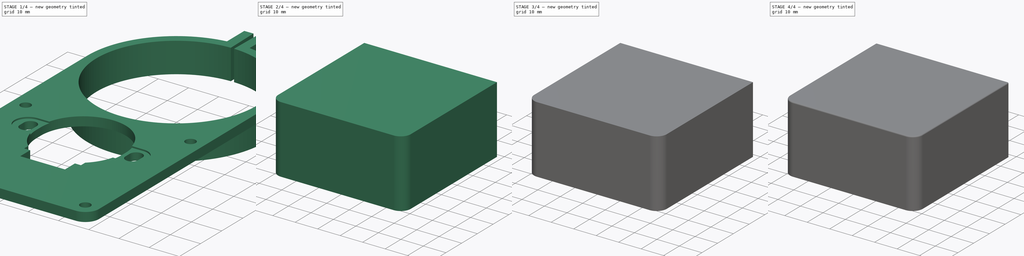
[diagram: build sequence overview — one tinted view per stage of 4, left to right]
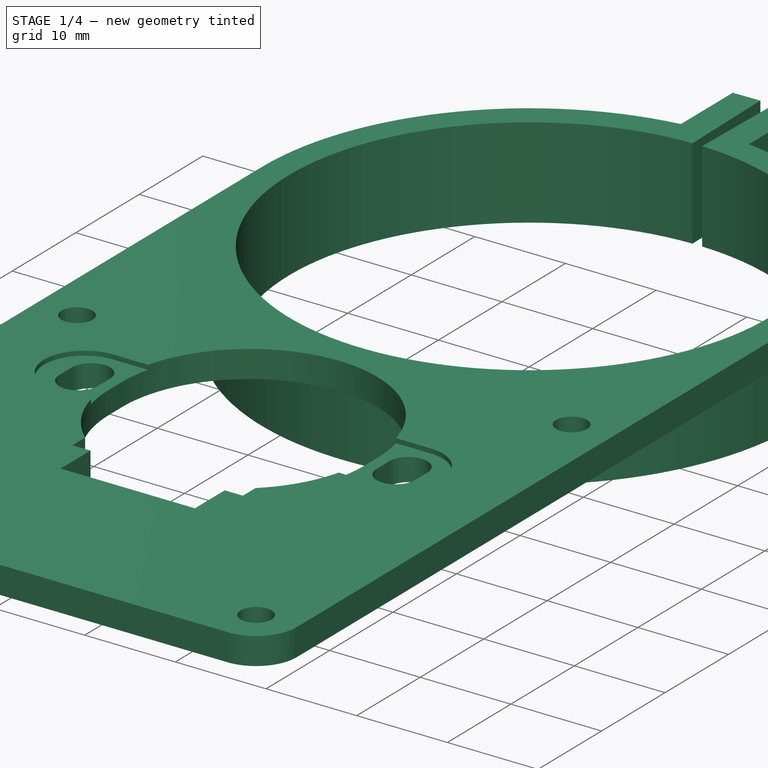
[diagram: stage 1 of 4 — iso view after this stage's code; geometry added in this stage tinted green]
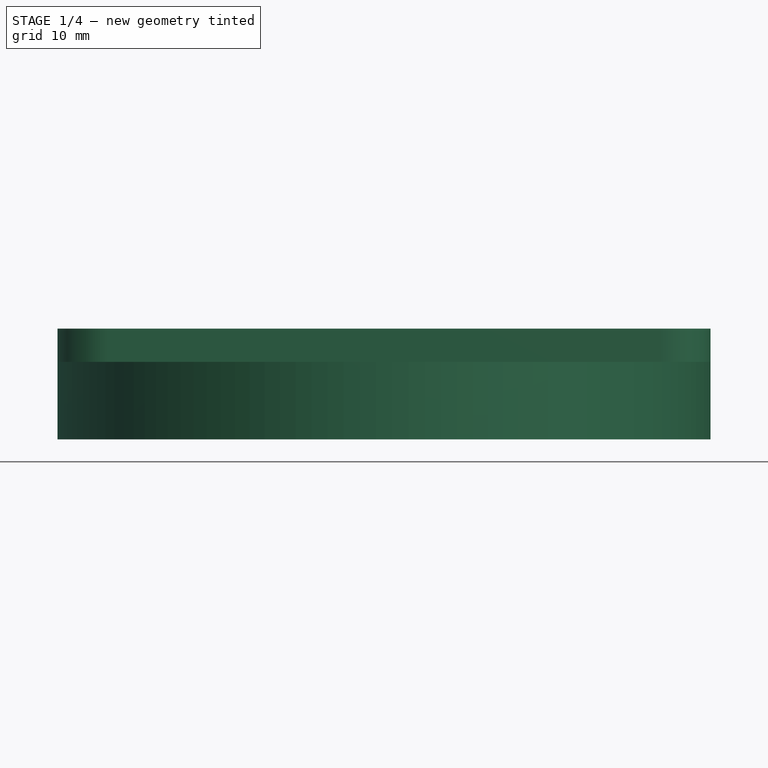
[diagram: stage 1 of 4 — front view after this stage's code; geometry added in this stage tinted green]
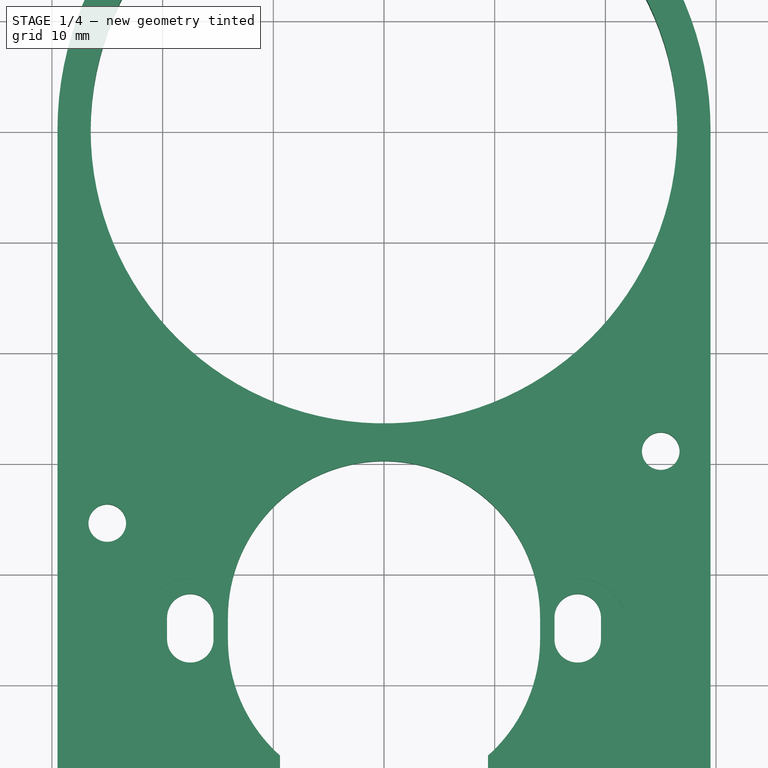
[diagram: stage 1 of 4 — top view after this stage's code; geometry added in this stage tinted green]
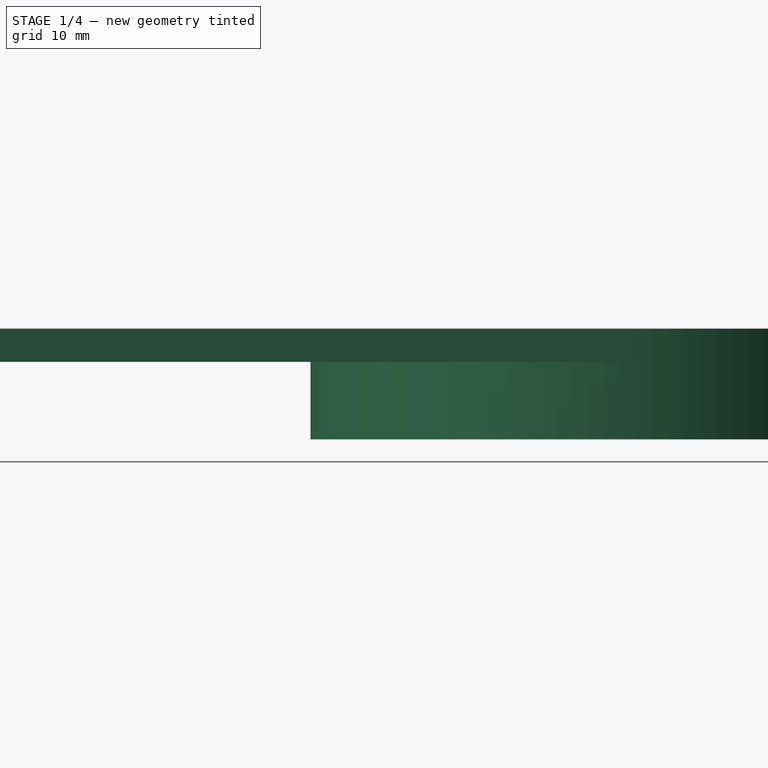
[diagram: stage 1 of 4 — right view after this stage's code; geometry added in this stage tinted green]
FCSTD DOCUMENT  (FreeCAD 0.21R33771 (Git))
Label: Body
License: All rights reserved
LicenseURL: https://en.wikipedia.org/wiki/All_rights_reserved
objects: Sketcher::SketchObject×12, PartDesign::Pocket×8, PartDesign::Pad×4, PartDesign::SubShapeBinder×2, PartDesign::Body×2, Spreadsheet::Sheet×1, PartDesign::Fillet×1, App::Part×1
note: 42 computed .brp shape members not serialized (recipe doc carries the construction recipe); baked Part::Feature solids carry a one-line shape summary decoded from their .brp

FEATURE [Sketcher::SketchObject] Sketch
  FullyConstrained = true
  MapMode = 5
  Support = -> [XY_Plane001]
  sketch-geometry (38):
    g0: LineSegment StartX=-25 StartY=-83.2 StartZ=0 EndX=25 EndY=-83.2 EndZ=0
    g1: LineSegment StartX=29.5 StartY=-78.7 StartZ=0 EndX=29.5 EndY=0 EndZ=0
    g2: ArcOfCircle CenterX=2.51e-14 CenterY=0 CenterZ=0 NormalX=0 NormalY=0 NormalZ=1 AngleXU=0 Radius=29.5 StartAngle=0 EndAngle=1.44335
    g3: LineSegment StartX=3.7494 StartY=29.2608 StartZ=0 EndX=3.7494 EndY=37.4325 EndZ=0
    g4: LineSegment StartX=3.7494 StartY=37.4325 StartZ=0 EndX=0.75 EndY=37.4925 EndZ=0
    g5: LineSegment StartX=0.75 StartY=37.4925 StartZ=0 EndX=0.53 EndY=26.4947 EndZ=0
    g6: ArcOfCircle CenterX=2.51e-14 CenterY=0 CenterZ=0 NormalX=0 NormalY=0 NormalZ=1 AngleXU=0 Radius=26.5 StartAngle=1.5908 EndAngle=7.83398
    g7: ArcOfCircle CenterX=2.51e-14 CenterY=0 CenterZ=0 NormalX=0 NormalY=0 NormalZ=1 AngleXU=0 Radius=29.5 StartAngle=1.69824 EndAngle=3.14159
    g8: LineSegment StartX=-29.5 StartY=0 StartZ=0 EndX=-29.5 EndY=-78.7 EndZ=0
    g9: LineSegment StartX=-0.53 StartY=26.4947 StartZ=0 EndX=-0.75 EndY=37.4925 EndZ=0
    g10: LineSegment StartX=-0.75 StartY=37.4925 StartZ=0 EndX=-3.7494 EndY=37.4325 EndZ=0
    g11: LineSegment StartX=-3.7494 StartY=37.4325 StartZ=0 EndX=-3.7494 EndY=29.2608 EndZ=0
    g12: LineSegment StartX=-7.4 StartY=-63.2 StartZ=0 EndX=7.4 EndY=-63.2 EndZ=0
    g13: LineSegment StartX=7.4 StartY=-63.2 StartZ=0 EndX=7.4 EndY=-58.5095 EndZ=0
    g14: LineSegment StartX=-7.4 StartY=-63.2 StartZ=0 EndX=-7.4 EndY=-58.5095 EndZ=0
    g15: ArcOfCircle CenterX=5.5e-15 CenterY=-46 CenterZ=0 NormalX=0 NormalY=0 NormalZ=1 AngleXU=0 Radius=14.1 StartAngle=3.14159 EndAngle=3.98266
    g16: LineSegment StartX=-14.1 StartY=-46 StartZ=0 EndX=-14.1 EndY=-44 EndZ=0
    g17: ArcOfCircle CenterX=0 CenterY=-44 CenterZ=0 NormalX=0 NormalY=0 NormalZ=1 AngleXU=0 Radius=14.1 StartAngle=2e-16 EndAngle=3.14159
    g18: LineSegment StartX=14.1 StartY=-44 StartZ=0 EndX=14.1 EndY=-46 EndZ=0
    g19: ArcOfCircle CenterX=5.5e-15 CenterY=-46 CenterZ=0 NormalX=0 NormalY=0 NormalZ=1 AngleXU=0 Radius=14.1 StartAngle=5.44212 EndAngle=6.28319
    g20: ArcOfCircle CenterX=-25 CenterY=-78.7 CenterZ=0 NormalX=0 NormalY=0 NormalZ=1 AngleXU=0 Radius=4.5 StartAngle=3.14159 EndAngle=4.71239
    g21: Circle CenterX=-25 CenterY=-78.7 CenterZ=0 NormalX=0 NormalY=0 NormalZ=1 AngleXU=0 Radius=1.7
    g22: ArcOfCircle CenterX=25 CenterY=-78.7 CenterZ=0 NormalX=0 NormalY=0 NormalZ=1 AngleXU=0 Radius=4.5 StartAngle=4.71239 EndAngle=6.28319
    g23: Circle CenterX=25 CenterY=-78.7 CenterZ=0 NormalX=0 NormalY=0 NormalZ=1 AngleXU=0 Radius=1.7
    g24: Circle CenterX=-25 CenterY=-35.5 CenterZ=0 NormalX=0 NormalY=0 NormalZ=1 AngleXU=0 Radius=1.7
    g25: Circle CenterX=25 CenterY=-29 CenterZ=0 NormalX=0 NormalY=0 NormalZ=1 AngleXU=0 Radius=1.7
    g26: ArcOfCircle CenterX=17.5 CenterY=-44 CenterZ=0 NormalX=0 NormalY=0 NormalZ=1 AngleXU=0 Radius=2.1 StartAngle=1.6e-15 EndAngle=3.14159
    g27: ArcOfCircle CenterX=17.5 CenterY=-46 CenterZ=0 NormalX=0 NormalY=0 NormalZ=1 AngleXU=0 Radius=2.1 StartAngle=3.14159 EndAngle=6.28319
    g28: LineSegment StartX=15.4 StartY=-44 StartZ=0 EndX=15.4 EndY=-46 EndZ=0
    g29: LineSegment StartX=19.6 StartY=-46 StartZ=0 EndX=19.6 EndY=-44 EndZ=0
    g30: ArcOfCircle CenterX=-17.5 CenterY=-44 CenterZ=0 NormalX=0 NormalY=0 NormalZ=1 AngleXU=0 Radius=2.1 StartAngle=-9e-16 EndAngle=3.14159
    g31: ArcOfCircle CenterX=-17.5 CenterY=-46 CenterZ=0 NormalX=0 NormalY=0 NormalZ=1 AngleXU=0 Radius=2.1 StartAngle=3.14159 EndAngle=6.28319
    g32: LineSegment StartX=-19.6 StartY=-44 StartZ=0 EndX=-19.6 EndY=-46 EndZ=0
    g33: LineSegment StartX=-15.4 StartY=-46 StartZ=0 EndX=-15.4 EndY=-44 EndZ=0
    g34: LineSegment StartX=-9.4 StartY=-58.5095 StartZ=0 EndX=-9.4 EndY=-56.5095 EndZ=0
    g35: LineSegment StartX=-7.4 StartY=-58.5095 StartZ=0 EndX=-9.4 EndY=-58.5095 EndZ=0
    g36: LineSegment StartX=9.4 StartY=-58.5095 StartZ=0 EndX=7.4 EndY=-58.5095 EndZ=0
    g37: LineSegment StartX=9.4 StartY=-58.5095 StartZ=0 EndX=9.4 EndY=-56.5095 EndZ=0
  constraints (107):
    c: Horizontal(g0)  'Bottom horizontal'
    c: Vertical(g1)
    c: Coincident(g2,g3)
    c: Coincident(g3,g4)
    c: Vertical(g8)
    c: Diameter(g6) = 53
    c: Equal(g7,g2)
    c: Diameter(g7) = 59
    c: Coincident(g6,g2)
    c: Coincident(g4,g5)
    c: Coincident(g7,g2)
    c: Symmetric(g6,g5,g-2)
    c: Coincident(g6,g9)
    c: Coincident(g9,g10)
    c: Coincident(g10,g11)
    c: Coincident(g11,g7)
    c: Symmetric(g10,g3,g-2)
    c: Coincident(g5,g6)
    c: Perpendicular(g6,g9)
    c: Perpendicular(g9,g10)
    c: Perpendicular(g4,g5)
    c: Distance(g5) = 11
    c: Perpendicular(g6,g5)
    c: Distance(g10) = 3
    c: DistanceX(g9,g4) = 1.5
    c: Coincident(g7,g8)
    c: Coincident(g2,g1)
    c: Horizontal(g1,g2)
    c: Horizontal(g7,g2)
    c: Horizontal(g12)
    c: Vertical(g13)
    c: Tangent(g15,g16) = 1.5708
    c: Tangent(g16,g17) = 1.5708
    c: Tangent(g17,g18) = 1.5708
    c: Tangent(g18,g19) = 1.5708
    c: Vertical(g16)
    c: Vertical(g18)
    c: Coincident(g15,g19)
    c: Equal(g15,g19)
    c: Diameter(g15) = 28.2
    c: PointOnObject(g17,g-2)
    c: DistanceY(g15,g16) = 2
    c: Vertical(g14)
    c: Horizontal(g14,g13)
    c: DistanceY(g17,g2) = 44
    c: DistanceY(g12,g15) = 17.2
    c: Coincident(g20,g0)
    c: Coincident(g20,g8)
    c: Coincident(g21,g20)
    c: Diameter(g21) = 3.4
    c: Coincident(g22,g1)
    c: Coincident(g22,g0)
    c: Horizontal(g22,g1)
    c: Vertical(g22,g0)
    c: Coincident(g23,g22)
    c: Diameter(g23) = 3.4
    c: Diameter(g25) = 3.4
    c: Diameter(g24) = 3.4
    c: Vertical(g24,g20)
    c: Vertical(g25,g22)
    c: DistanceY(g0,g12) = 20
    c: DistanceY(g-1,g2) = 0
    c: Vertical(g0,g20)
    c: Horizontal(g20,g8)
    c: Tangent(g26,g28) = -1.5708
    c: Tangent(g28,g27) = -1.5708
    c: Tangent(g27,g29) = -1.5708
    c: Tangent(g29,g26) = -1.5708
    c: Equal(g26,g27)
    c: Vertical(g28)
    c: DistanceX(g26,g26) = 4.2
    c: DistanceY(g17,g26) = 0
    c: DistanceY(g27,g18) = 0
    c: DistanceX(g17,g26) = 17.5
    c: Tangent(g30,g32) = -1.5708
    c: Tangent(g32,g31) = -1.5708
    c: Tangent(g31,g33) = -1.5708
    c: Tangent(g33,g30) = -1.5708
    c: Equal(g30,g31)
    c: Vertical(g32)
    c: DistanceX(g30,g30) = 4.2
    c: DistanceY(g30,g16) = 0
    c: DistanceY(g31,g15) = 0
    c: DistanceX(g30,g17) = 17.5
    c: Coincident(g34,g15)
    c: Vertical(g34)
    c: Coincident(g14,g35)
    c: Coincident(g35,g34)
    c: Coincident(g36,g13)
    c: Coincident(g36,g37)
    c: Coincident(g37,g19)
    c: Horizontal(g35)
    c: Vertical(g37)
    c: Horizontal(g36)
    c: DistanceY(g34,g15) = 2
    c: DistanceX(g34,g14) = 2
    c: DistanceX(g13,g36) = 2
    c: Horizontal(g15,g19)
    c: Coincident(g14,g12)
    c: Coincident(g12,g13)
    c: DistanceX(g14,g13) = 14.8
    c: Equal(g20,g22)
    c: Radius(g20) = 4.5  'CaseFillet'
    c: Vertical(g11)
    c: Vertical(g3)
    c: DistanceY(g17,g25) = 15
    c: DistanceY(g17,g24) = 8.5
FEATURE [PartDesign::Pad] Pad
  Direction = (0,0,1)
  Length = 10
  Length2 = 10
  Profile = -> Sketch
  ReferenceAxis = -> Sketch [N_Axis]
  Refine = true
  Reversed = true
  Type = 0
FEATURE [Sketcher::SketchObject] Sketch001
  AttachmentOffset = pos=(0,0,-3) rot=(0,0,1;0rad)
  ExternalGeometry = -> [Pad]
  FullyConstrained = true
  MapMode = 5
  Placement = pos=(0,0,-3) rot=(0,0,1;0rad)
  Support = -> [XY_Plane001]
  expr: .AttachmentOffset.Base.z = -3
  sketch-geometry (6):
    g0: ArcOfCircle CenterX=0 CenterY=0 CenterZ=0 NormalX=0 NormalY=0 NormalZ=1 AngleXU=0 Radius=29.5 StartAngle=3.14159 EndAngle=6.28319
    g1: LineSegment StartX=-29.5 StartY=0 StartZ=0 EndX=-29.5 EndY=-78.7 EndZ=0
    g2: ArcOfCircle CenterX=-25 CenterY=-78.7 CenterZ=0 NormalX=0 NormalY=0 NormalZ=1 AngleXU=0 Radius=4.5 StartAngle=3.14159 EndAngle=4.71239
    g3: LineSegment StartX=-25 StartY=-83.2 StartZ=0 EndX=25 EndY=-83.2 EndZ=0
    g4: ArcOfCircle CenterX=25 CenterY=-78.7 CenterZ=0 NormalX=0 NormalY=0 NormalZ=1 AngleXU=0 Radius=4.5 StartAngle=4.71239 EndAngle=6.28319
    g5: LineSegment StartX=29.5 StartY=-78.7 StartZ=0 EndX=29.5 EndY=-1.42e-14 EndZ=0
  constraints (17):
    c: PointOnObject(g0,g-1)
    c: Diameter(g0) = 59
    c: Coincident(g-1,g0)
    c: Horizontal(g0,g0)
    c: Vertical(g1)
    c: Coincident(g2,g3)
    c: Horizontal(g3)
    c: Tangent(g3,g4) = -1.5708
    c: Coincident(g4,g5)
    c: Vertical(g5)
    c: Coincident(g0,g1)
    c: Coincident(g0,g5)
    c: Coincident(g-6,g4)
    c: Coincident(g2,g-4)
    c: Horizontal(g1,g2)
    c: Horizontal(g4,g4)
    c: Coincident(g2,g1)
FEATURE [PartDesign::Pocket] Pocket
  BaseFeature = -> Pad
  Direction = (0,0,-1)
  Length = 5
  Length2 = 8
  Profile = -> Sketch001
  ReferenceAxis = -> Sketch001 [N_Axis]
  Refine = true
  Type = 1
  expr: Length = 5
  expr: Length2 = 8
FEATURE [Sketcher::SketchObject] Sketch002
  FullyConstrained = true
  MapMode = 5
  Support = -> [Pocket]
  sketch-geometry (4):
    g0: ArcOfCircle CenterX=17.5 CenterY=-45 CenterZ=0 NormalX=0 NormalY=0 NormalZ=1 AngleXU=0 Radius=4.5 StartAngle=4.71239 EndAngle=7.85398
    g1: ArcOfCircle CenterX=-17.5 CenterY=-45 CenterZ=0 NormalX=0 NormalY=0 NormalZ=1 AngleXU=0 Radius=4.5 StartAngle=1.5708 EndAngle=4.71239
    g2: LineSegment StartX=17.5 StartY=-40.5 StartZ=0 EndX=-17.5 EndY=-40.5 EndZ=0
    g3: LineSegment StartX=-17.5 StartY=-49.5 StartZ=0 EndX=17.5 EndY=-49.5 EndZ=0
  constraints (9):
    c: Tangent(g0,g2) = -1.5708
    c: Tangent(g2,g1) = -1.5708
    c: Tangent(g1,g3) = -1.5708
    c: Tangent(g3,g0) = -1.5708
    c: Equal(g0,g1)
    c: DistanceY(g1,g1) = 9
    c: Symmetric(g1,g0,g-2)
    c: DistanceY(g1,g-1) = 45
    c: DistanceX(g-1,g0) = 17.5
FEATURE [PartDesign::Pocket] Pocket001
  BaseFeature = -> Pocket
  Direction = (0,0,-1)
  Length = 0.5
  Length2 = 5
  Profile = -> Sketch002
  ReferenceAxis = -> Sketch002 [N_Axis]
  Refine = true
  Type = 0
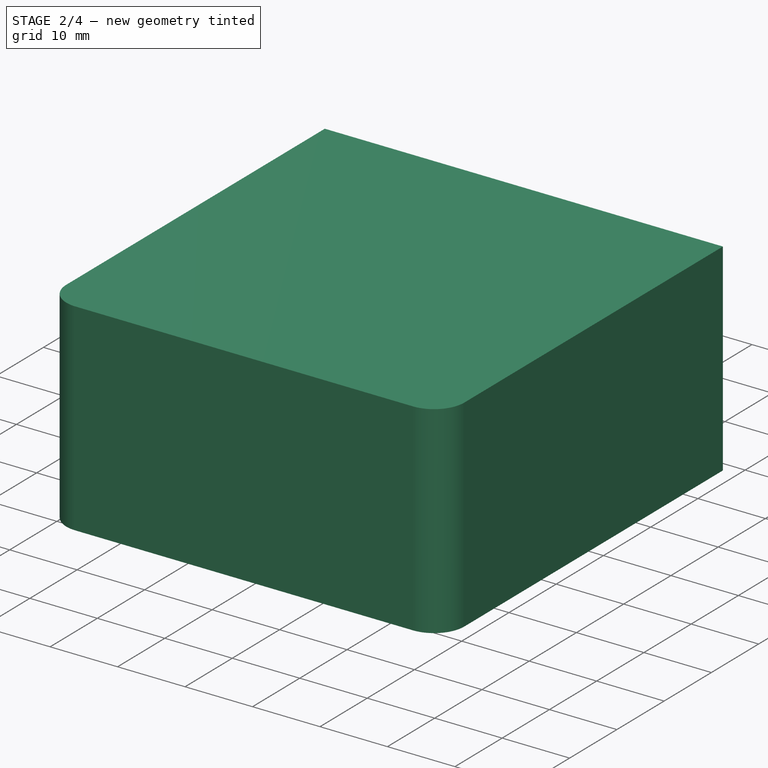
[diagram: stage 2 of 4 — iso view after this stage's code; geometry added in this stage tinted green]
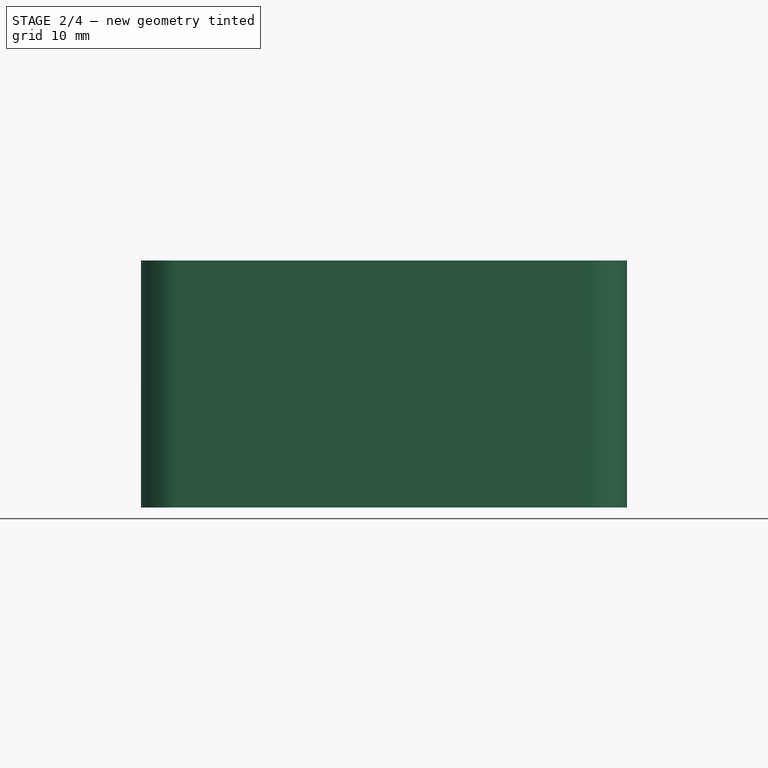
[diagram: stage 2 of 4 — front view after this stage's code; geometry added in this stage tinted green]
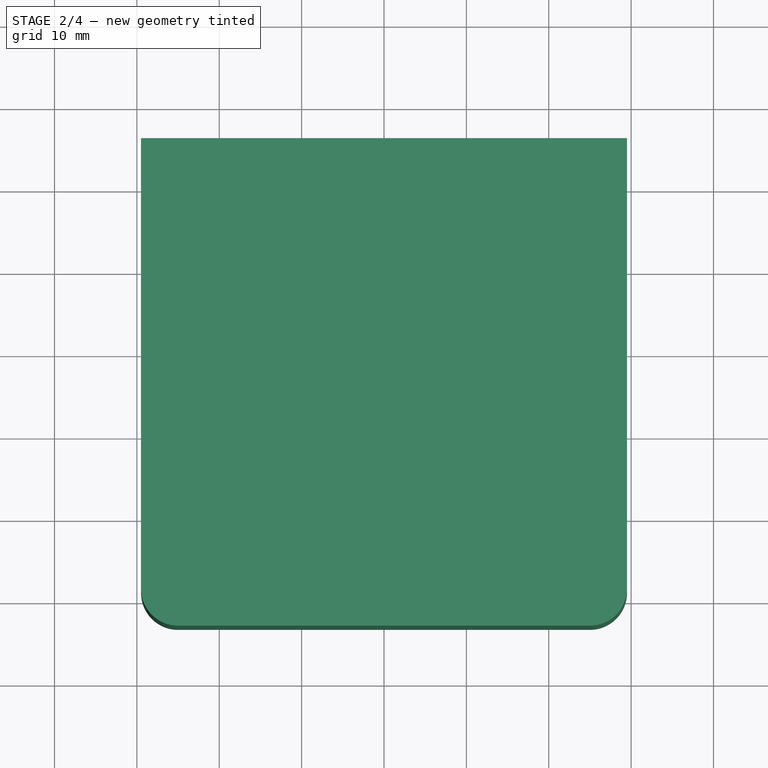
[diagram: stage 2 of 4 — top view after this stage's code; geometry added in this stage tinted green]
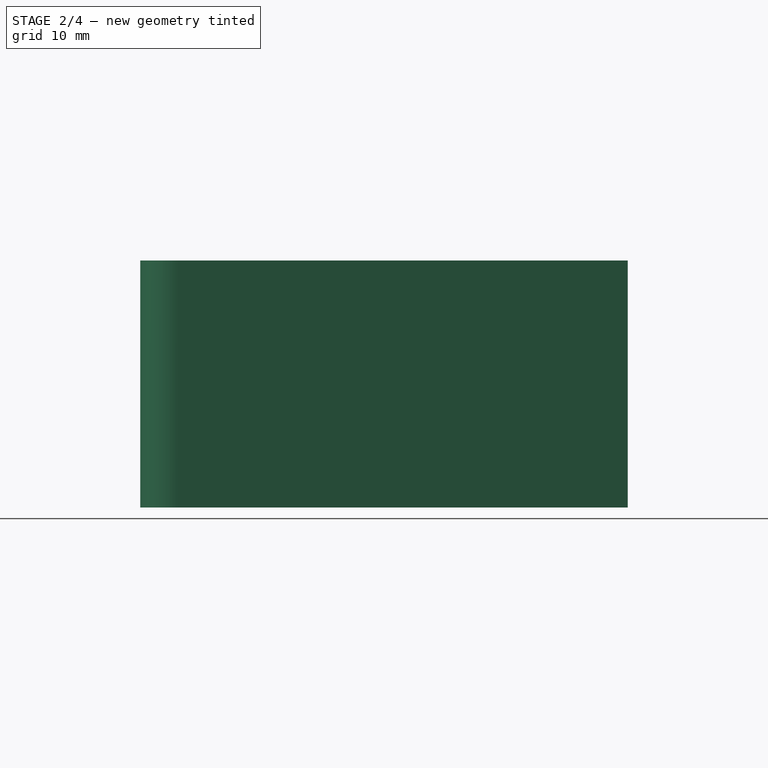
[diagram: stage 2 of 4 — right view after this stage's code; geometry added in this stage tinted green]
FEATURE [Sketcher::SketchObject] Sketch003
  FullyConstrained = true
  MapMode = 5
  Placement = pos=(-7.4,0,0) rot=(0.57735,0.57735,0.57735;2.0944rad)
  sketch-geometry (4):
    g0: LineSegment StartX=-3 StartY=-62 StartZ=0 EndX=3 EndY=-62 EndZ=0
    g1: LineSegment StartX=3 StartY=-62 StartZ=0 EndX=3 EndY=-67 EndZ=0
    g2: LineSegment StartX=3 StartY=-67 StartZ=0 EndX=-3 EndY=-67 EndZ=0
    g3: LineSegment StartX=-3 StartY=-67 StartZ=0 EndX=-3 EndY=-62 EndZ=0
  constraints (11):
    c: Coincident(g0,g1)
    c: Coincident(g1,g2)
    c: Coincident(g2,g3)
    c: Coincident(g3,g0)
    c: Horizontal(g2)
    c: Vertical(g1)
    c: Vertical(g3)
    c: Symmetric(g0,g0,g-2)
    c: DistanceY(g0,g-1) = 62
    c: DistanceY(g2,g0) = 5
    c: DistanceX(g2,g1) = 6
FEATURE [PartDesign::Pocket] Pocket002
  BaseFeature = -> Pocket001
  Direction = (-1,0,0)
  Length = 5
  Length2 = 5
  Profile = -> Sketch003
  ReferenceAxis = -> Sketch003 [N_Axis]
  Refine = true
  Type = 1
FEATURE [Spreadsheet::Sheet] Spreadsheet  label="Parameters"
  cells = A1='M3Diameter1; B1(M3Diameter1)==3.9 mm; A2='M3Diameter2; B2(M3Diameter2)==4.5 mm; A3='M3Length; B3(M3Length)==4 mm; A4='CaseHeight; B4(CaseHeight)==30 mm; A5='WallThickness; B5(WallThickness)==2 mm; A6='M2Diameter1; B6(M2Diameter1)==2.8 mm; A7='M2Diameter2; B7(M2Diameter2)==3.2 mm; A8='M2Length; B8(M2Length)==4 mm; A9='M1_6Diameter1; B9(M1_6Diameter1)==2.2 mm; A10='M1_6Diameter2; B10(M1_6Diameter2)==2.5 mm; A11='M1_6Length; B11(M1_6Length)==4 mm; A12='Tolerance; B12(Tolerance)==0.4 mm; A13='PostHeight; B13(PostHeight)==8 mm
FEATURE [PartDesign::SubShapeBinder] Binder001  label="Holes"
  BindCopyOnChange = 0
  BindMode = 0
  ClaimChildren = false
  Context = -> Part [Body001.Binder001.]
  Fuse = false
  MakeFace = true
  OffsetFill = false
  OffsetIntersection = false
  OffsetJoinType = 0
  OffsetOpenResult = false
  PartialLoad = false
  Refine = true
  Relative = true
  Support = -> [Body[Pad.Edge104,Pad.Edge113,Pad.Edge110,Pad.Edge107]]
  _Version = 2
FEATURE [Sketcher::SketchObject] Sketch010
  ExternalGeometry = -> [Binder001]
  FullyConstrained = true
  MapMode = 5
  Support = -> [XY_Plane002]
  expr: Constraints[21] = <<Parameters>>.M3Diameter2 - 1 mm
  expr: Constraints[9] = <<Parameters>>.M3Diameter1 + <<Parameters>>.Tolerance
  sketch-geometry (25):
    g0: Circle CenterX=-25 CenterY=-35.5 CenterZ=0 NormalX=0 NormalY=0 NormalZ=1 AngleXU=0 Radius=2.15
    g1: Circle CenterX=25 CenterY=-29 CenterZ=0 NormalX=0 NormalY=0 NormalZ=1 AngleXU=0 Radius=2.15
    g2: Circle CenterX=-25 CenterY=-78.7 CenterZ=0 NormalX=0 NormalY=0 NormalZ=1 AngleXU=0 Radius=2.15
    g3: Circle CenterX=25 CenterY=-78.7 CenterZ=0 NormalX=0 NormalY=0 NormalZ=1 AngleXU=0 Radius=2.15
    g4: LineSegment StartX=20.75 StartY=-29 StartZ=0 EndX=20.75 EndY=-25.5 EndZ=0
    g5: LineSegment StartX=28.5 StartY=-33.25 StartZ=0 EndX=25 EndY=-33.25 EndZ=0
    g6: ArcOfCircle CenterX=25 CenterY=-29 CenterZ=0 NormalX=0 NormalY=0 NormalZ=1 AngleXU=0 Radius=4.25 StartAngle=3.14159 EndAngle=4.71239
    g7: LineSegment StartX=20.75 StartY=-25.5 StartZ=0 EndX=28.5 EndY=-25.5 EndZ=0
    g8: LineSegment StartX=28.5 StartY=-25.5 StartZ=0 EndX=28.5 EndY=-33.25 EndZ=0
    g9: ArcOfCircle CenterX=-25 CenterY=-35.5 CenterZ=0 NormalX=0 NormalY=0 NormalZ=1 AngleXU=0 Radius=4.25 StartAngle=4.71239 EndAngle=7.85398
    g10: ArcOfCircle CenterX=-25 CenterY=-78.7 CenterZ=0 NormalX=0 NormalY=0 NormalZ=1 AngleXU=0 Radius=4.25 StartAngle=0 EndAngle=1.5708
    g11: ArcOfCircle CenterX=25 CenterY=-78.7 CenterZ=0 NormalX=0 NormalY=0 NormalZ=1 AngleXU=0 Radius=4.25 StartAngle=1.5708 EndAngle=3.14159
    g12: LineSegment StartX=-25 StartY=-31.25 StartZ=0 EndX=-28.78 EndY=-31.25 EndZ=0
    g13: LineSegment StartX=-28.78 StartY=-31.25 StartZ=0 EndX=-28.78 EndY=-39.75 EndZ=0
    g14: LineSegment StartX=-28.78 StartY=-39.75 StartZ=0 EndX=-25 EndY=-39.75 EndZ=0
    g15: LineSegment StartX=-25 StartY=-74.45 StartZ=0 EndX=-28.76 EndY=-74.45 EndZ=0
    g16: LineSegment StartX=-28.76 StartY=-74.45 StartZ=0 EndX=-28.76 EndY=-78.7 EndZ=0
    g17: ArcOfCircle CenterX=-25 CenterY=-78.7 CenterZ=0 NormalX=0 NormalY=0 NormalZ=1 AngleXU=0 Radius=3.76 StartAngle=3.14159 EndAngle=4.71239
    g18: LineSegment StartX=-25 StartY=-82.46 StartZ=0 EndX=-20.75 EndY=-82.46 EndZ=0
    g19: LineSegment StartX=-20.75 StartY=-82.46 StartZ=0 EndX=-20.75 EndY=-78.7 EndZ=0
    g20: LineSegment StartX=20.75 StartY=-78.7 StartZ=0 EndX=20.75 EndY=-82.11 EndZ=0
    g21: LineSegment StartX=20.75 StartY=-82.11 StartZ=0 EndX=25 EndY=-82.11 EndZ=0
    g22: ArcOfCircle CenterX=25 CenterY=-78.7 CenterZ=0 NormalX=0 NormalY=0 NormalZ=1 AngleXU=0 Radius=3.41 StartAngle=4.71239 EndAngle=6.28319
    g23: LineSegment StartX=28.41 StartY=-78.7 StartZ=0 EndX=28.41 EndY=-74.45 EndZ=0
    g24: LineSegment StartX=28.41 StartY=-74.45 StartZ=0 EndX=25 EndY=-74.45 EndZ=0
  constraints (67):
    c: Coincident(g0,g-3)
    c: Coincident(g1,g6)
    c: Coincident(g1,g-4)
    c: Coincident(g2,g-5)
    c: Coincident(g3,g11)
    c: Coincident(g3,g-6)
    c: Equal(g0,g1)
    c: Equal(g0,g2)
    c: Equal(g0,g3)
    c: Diameter(g0) = 4.3
    c: Vertical(g4)
    c: Coincident(g4,g7)
    c: Coincident(g8,g5)
    c: Coincident(g4,g6)
    c: Coincident(g6,g5)
    c: Coincident(g7,g8)
    c: Vertical(g1,g5)
    c: Horizontal(g5)
    c: Horizontal(g7)
    c: Vertical(g8)
    c: Equal(g4,g5)
    c: DistanceY(g4,g4) = 3.5
    c: Horizontal(g4,g1)
    c: Diameter(g9) = 8.5
    c: Equal(g9,g6)
    c: Equal(g9,g10)
    c: Equal(g9,g11)
    c: Tangent(g9,g12) = -1.5708
    c: Coincident(g12,g13)
    c: Vertical(g13)
    c: Coincident(g13,g14)
    c: Coincident(g14,g9)
    c: Tangent(g10,g15) = -1.5708
    c: Coincident(g15,g16)
    c: Vertical(g16)
    c: Tangent(g16,g17) = -1.5708
    c: Tangent(g17,g18) = -1.5708
    c: Coincident(g18,g19)
    c: Coincident(g19,g10)
    c: Tangent(g11,g20) = -1.5708
    c: Coincident(g20,g21)
    c: Horizontal(g21)
    c: Tangent(g21,g22) = -1.5708
    c: Tangent(g22,g23) = -1.5708
    c: Coincident(g23,g24)
    c: Coincident(g24,g11)
    c: Vertical(g9,g0)
    c: Vertical(g0,g9)
    c: Horizontal(g14)
    c: Horizontal(g12)
    c: DistanceX(g13,g0) = 3.78
    c: DistanceY(g9,g0) = 0
    c: Horizontal(g15)
    c: Horizontal(g18)
    c: Vertical(g19)
    c: Coincident(g17,g2)
    c: Horizontal(g2,g10)
    c: Vertical(g10,g17)
    c: Horizontal(g10,g10)
    c: DistanceY(g17,g2) = 3.76
    c: Horizontal(g24)
    c: Vertical(g20)
    c: Vertical(g23)
    c: Vertical(g21,g3)
    c: Horizontal(g22,g3)
    c: Vertical(g3,g11)
    c: DistanceY(g21,g3) = 3.41
FEATURE [PartDesign::SubShapeBinder] Binder  label="Frame"
  BindCopyOnChange = 0
  BindMode = 0
  ClaimChildren = false
  Context = -> Part [Body001.Binder.]
  Fuse = false
  MakeFace = true
  OffsetFill = false
  OffsetIntersection = false
  OffsetJoinType = 0
  OffsetOpenResult = false
  PartialLoad = false
  Refine = true
  Relative = true
  Support = -> [Body[Pad.Edge27,Pad.Edge24,Pad.Edge21,Pad.Edge18,Pad.Edge15,Pad.Edge113]]
  _Version = 2
FEATURE [Sketcher::SketchObject] Sketch005
  ExternalGeometry = -> [Binder]
  FullyConstrained = true
  MapMode = 5
  Support = -> [XY_Plane002]
  sketch-geometry (6):
    g0: LineSegment StartX=29.5 StartY=-24 StartZ=0 EndX=-29.5 EndY=-24 EndZ=0
    g1: LineSegment StartX=-29.5 StartY=-24 StartZ=0 EndX=-29.5 EndY=-78.7 EndZ=0
    g2: ArcOfCircle CenterX=-25 CenterY=-78.7 CenterZ=0 NormalX=0 NormalY=0 NormalZ=1 AngleXU=0 Radius=4.5 StartAngle=3.14159 EndAngle=4.71239
    g3: ArcOfCircle CenterX=25 CenterY=-78.7 CenterZ=0 NormalX=0 NormalY=0 NormalZ=1 AngleXU=0 Radius=4.5 StartAngle=4.71239 EndAngle=6.28318
    g4: LineSegment StartX=29.5 StartY=-78.7 StartZ=0 EndX=29.5 EndY=-24 EndZ=0
    g5: LineSegment StartX=-25 StartY=-83.2 StartZ=0 EndX=25 EndY=-83.2 EndZ=0
  constraints (16):
    c: Coincident(g0,g1)
    c: Coincident(g3,g4)
    c: Coincident(g4,g0)
    c: Coincident(g2,g1)
    c: Coincident(g2,g5)
    c: Coincident(g5,g3)
    c: DistanceY(g-5,g0) = 5
    c: Coincident(g-8,g2)
    c: Coincident(g-7,g3)
    c: Coincident(g-6,g3)
    c: Vertical(g4)
    c: PointOnObject(g3,g-4)
    c: Horizontal(g0)
    c: PointOnObject(g0,g-3)
    c: Coincident(g1,g-8)
    c: Horizontal(g5)
FEATURE [PartDesign::Pad] Pad001
  Direction = (0,0,1)
  Length = 30
  Length2 = 10
  Profile = -> Sketch005
  ReferenceAxis = -> Sketch005 [N_Axis]
  Refine = true
  Type = 0
  expr: Length = <<Parameters>>.CaseHeight
FEATURE [Sketcher::SketchObject] Sketch011
  ExternalGeometry = -> [Pocket]
  FullyConstrained = false
  MapMode = 5
  Placement = pos=(0,0,0) rot=(0.57735,0.57735,0.57735;2.0944rad)
  Support = -> [YZ_Plane001]
  sketch-geometry (7):
    g0: Circle CenterX=33.4925 CenterY=-5 CenterZ=0 NormalX=0 NormalY=0 NormalZ=1 AngleXU=0 Radius=1.7
    g1: LineSegment StartX=32.4925 StartY=1.33387 StartZ=0 EndX=32.4925 EndY=-3.6e-15 EndZ=0
    g2: ArcOfCircle CenterX=32.4925 CenterY=-5.00909 CenterZ=0 NormalX=0 NormalY=0 NormalZ=1 AngleXU=0 Radius=5.00909 StartAngle=4.79762 EndAngle=7.85398
    g3: LineSegment StartX=32.9189 StartY=-10 StartZ=0 EndX=32.8096 EndY=-11.6936 EndZ=0
    g4: LineSegment StartX=32.8096 StartY=-11.6936 StartZ=0 EndX=39.6103 EndY=-11.6936 EndZ=0
    g5: LineSegment StartX=39.6103 StartY=-11.6936 StartZ=0 EndX=40.244 EndY=1.33387 EndZ=0
    g6: LineSegment StartX=40.244 StartY=1.33387 StartZ=0 EndX=32.4925 EndY=1.33387 EndZ=0
  constraints (15):
    c: DistanceY(g0,g-6) = 5
    c: Diameter(g0) = 3.4
    c: Vertical(g1)
    c: Perpendicular(g1,g2) = 4.71239
    c: Coincident(g2,g3)
    c: Coincident(g3,g4)
    c: Horizontal(g4)
    c: Coincident(g4,g5)
    c: Coincident(g5,g6)
    c: Coincident(g6,g1)
    c: Horizontal(g6)
    c: PointOnObject(g1,g-3)
    c: PointOnObject(g2,g-5)
    c: DistanceX(g1,g-4) = 5
    c: DistanceX(g0,g-4) = 4
FEATURE [PartDesign::Pocket] Pocket007
  BaseFeature = -> Pocket002
  Direction = (-1,2e-16,-3e-16)
  Length = 6
  Length2 = 5
  Profile = -> Sketch011
  ReferenceAxis = -> Sketch011 [N_Axis]
  Refine = true
  Type = 4
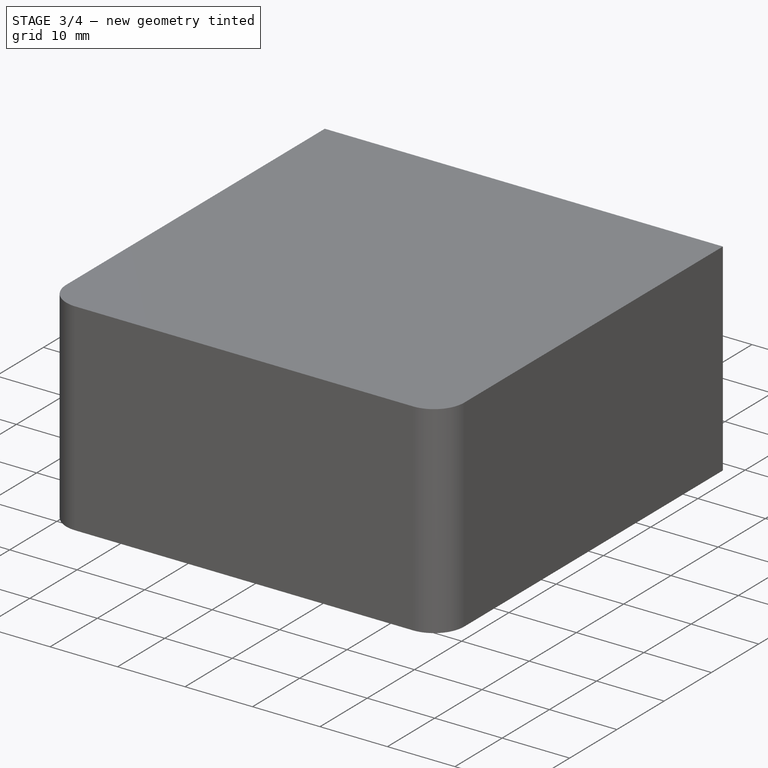
[diagram: stage 3 of 4 — iso view after this stage's code; geometry added in this stage tinted green]
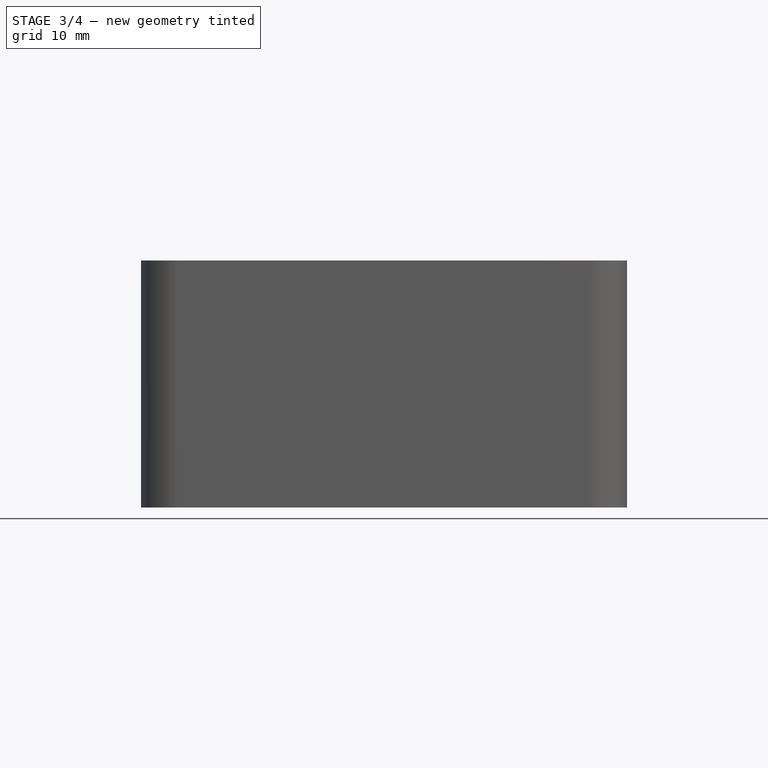
[diagram: stage 3 of 4 — front view after this stage's code; geometry added in this stage tinted green]
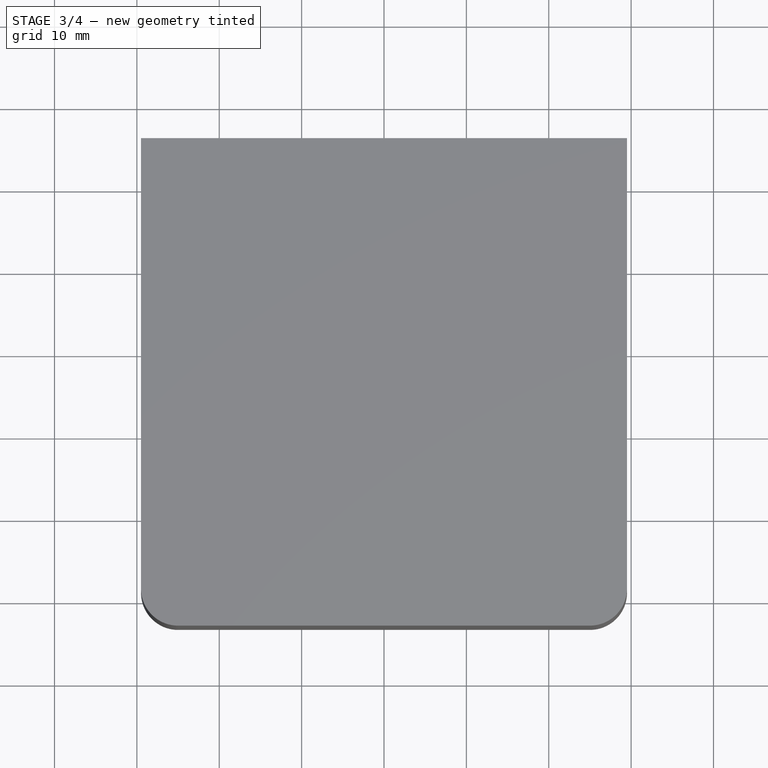
[diagram: stage 3 of 4 — top view after this stage's code; geometry added in this stage tinted green]
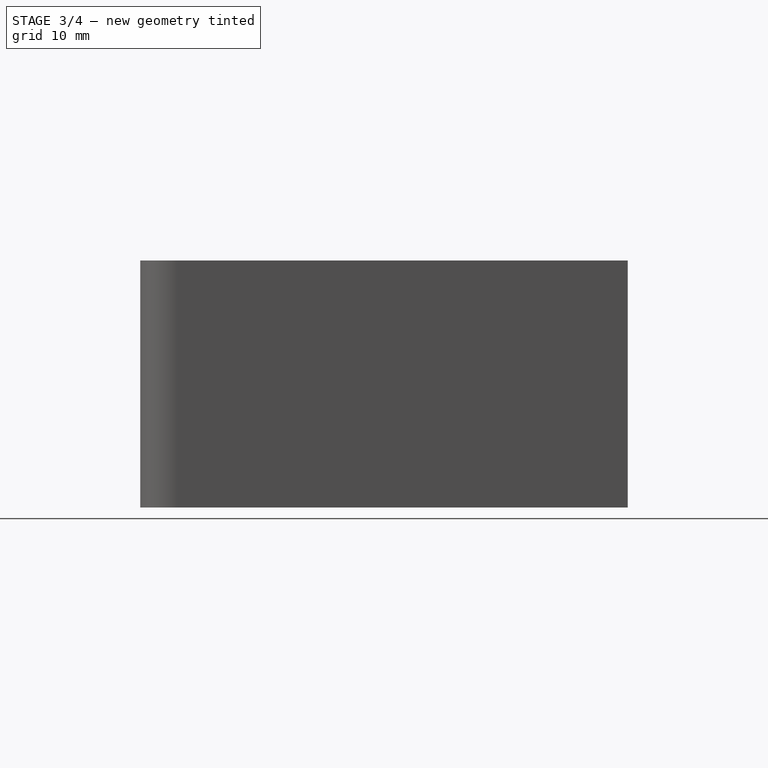
[diagram: stage 3 of 4 — right view after this stage's code; geometry added in this stage tinted green]
FEATURE [Sketcher::SketchObject] Sketch006
  ExternalGeometry = -> [Pad001]
  FullyConstrained = true
  MapMode = 5
  Placement = pos=(0,0,0) rot=(1,0,0;3.14159rad)
  Support = -> [Pad001]
  sketch-geometry (6):
    g0: LineSegment StartX=-27.5 StartY=26 StartZ=0 EndX=-27.5 EndY=78.7 EndZ=0
    g1: ArcOfCircle CenterX=-25 CenterY=78.7 CenterZ=0 NormalX=0 NormalY=0 NormalZ=1 AngleXU=0 Radius=2.50002 StartAngle=1.5708 EndAngle=3.14159
    g2: LineSegment StartX=-25 StartY=81.2 StartZ=0 EndX=25 EndY=81.2 EndZ=0
    g3: ArcOfCircle CenterX=25 CenterY=78.7 CenterZ=0 NormalX=0 NormalY=0 NormalZ=1 AngleXU=0 Radius=2.5 StartAngle=0 EndAngle=1.5708
    g4: LineSegment StartX=27.5 StartY=78.7 StartZ=0 EndX=27.5 EndY=26 EndZ=0
    g5: LineSegment StartX=27.5 StartY=26 StartZ=0 EndX=-27.5 EndY=26 EndZ=0
  constraints (18):
    c: Coincident(g3,g4)
    c: Coincident(g4,g5)
    c: Coincident(g5,g0)
    c: Symmetric(g4,g0,g-2)
    c: Coincident(g2,g3)
    c: Coincident(g0,g1)
    c: Symmetric(g0,g3,g-2)
    c: Vertical(g-4,g1)
    c: Coincident(g2,g1)
    c: Vertical(g1,g1)
    c: Horizontal(g1,g0)
    c: Vertical(g-4,g2)
    c: Vertical(g2,g3)
    c: Horizontal(g3,g3)
    c: DistanceY(g-6,g0) = 2
    c: DistanceX(g-6,g0) = 2
    c: DistanceY(g1,g-4) = 2
    c: Vertical(g4)
FEATURE [PartDesign::Pocket] Pocket004
  BaseFeature = -> Pad001
  Direction = (0,0,1)
  Length = 28
  Length2 = 5
  Profile = -> Sketch006
  ReferenceAxis = -> Sketch006 [N_Axis]
  Refine = true
  Type = 0
  expr: Length = <<Parameters>>.CaseHeight - <<Parameters>>.WallThickness
FEATURE [Sketcher::SketchObject] Sketch007
  ExternalGeometry = -> [Pocket004]
  FullyConstrained = true
  MapMode = 5
  Placement = pos=(0,0,28) rot=(1,0,0;3.14159rad)
  Support = -> [Pocket004]
  expr: Constraints[13] = <<Parameters>>.M1_6Diameter1 + <<Parameters>>.Tolerance
  expr: Constraints[17] = <<Parameters>>.M1_6Diameter2 + 1.6 mm
  expr: Constraints[30] = <<Parameters>>.M2Diameter1 + <<Parameters>>.Tolerance
  expr: Constraints[34] = <<Parameters>>.M2Diameter2 + 2 mm
  sketch-geometry (16):
    g0: Circle CenterX=-25.8 CenterY=27.7 CenterZ=0 NormalX=0 NormalY=0 NormalZ=1 AngleXU=0 Radius=2.05
    g1: Circle CenterX=14.84 CenterY=27.7 CenterZ=0 NormalX=0 NormalY=0 NormalZ=1 AngleXU=0 Radius=2.05
    g2: Circle CenterX=-25.8 CenterY=42.94 CenterZ=0 NormalX=0 NormalY=0 NormalZ=1 AngleXU=0 Radius=2.05
    g3: Circle CenterX=14.84 CenterY=42.94 CenterZ=0 NormalX=0 NormalY=0 NormalZ=1 AngleXU=0 Radius=2.05
    g4: Circle CenterX=14.84 CenterY=27.7 CenterZ=0 NormalX=0 NormalY=0 NormalZ=1 AngleXU=0 Radius=1.3
    g5: Circle CenterX=-25.8 CenterY=42.94 CenterZ=0 NormalX=0 NormalY=0 NormalZ=1 AngleXU=0 Radius=1.3
    g6: Circle CenterX=-25.8 CenterY=27.7 CenterZ=0 NormalX=0 NormalY=0 NormalZ=1 AngleXU=0 Radius=1.3
    g7: Circle CenterX=15 CenterY=76.2 CenterZ=0 NormalX=0 NormalY=0 NormalZ=1 AngleXU=0 Radius=1.6
    g8: Circle CenterX=-15 CenterY=76.2 CenterZ=0 NormalX=0 NormalY=0 NormalZ=1 AngleXU=0 Radius=1.6
    g9: Circle CenterX=-15 CenterY=76.2 CenterZ=0 NormalX=0 NormalY=0 NormalZ=1 AngleXU=0 Radius=2.6
    g10: Circle CenterX=15 CenterY=76.2 CenterZ=0 NormalX=0 NormalY=0 NormalZ=1 AngleXU=0 Radius=2.6
    g11: Circle CenterX=15 CenterY=50.2 CenterZ=0 NormalX=0 NormalY=0 NormalZ=1 AngleXU=0 Radius=1.6
    g12: Circle CenterX=15 CenterY=50.2 CenterZ=0 NormalX=0 NormalY=0 NormalZ=1 AngleXU=0 Radius=2.6
    g13: Circle CenterX=-15 CenterY=50.2 CenterZ=0 NormalX=0 NormalY=0 NormalZ=1 AngleXU=0 Radius=1.6
    g14: Circle CenterX=-15 CenterY=50.2 CenterZ=0 NormalX=0 NormalY=0 NormalZ=1 AngleXU=0 Radius=2.6
    g15: Circle CenterX=14.84 CenterY=42.94 CenterZ=0 NormalX=0 NormalY=0 NormalZ=1 AngleXU=0 Radius=1.3
  constraints (39):
    c: Coincident(g5,g2)
    c: Coincident(g3,g15)
    c: Coincident(g0,g6)
    c: Coincident(g1,g4)
    c: Horizontal(g2,g3)
    c: Horizontal(g0,g1)
    c: Vertical(g3,g1)
    c: Vertical(g2,g0)
    c: DistanceX(g2,g3) = 40.64
    c: DistanceY(g1,g3) = 15.24
    c: Equal(g5,g15)
    c: Equal(g5,g4)
    c: Equal(g5,g6)
    c: Diameter(g5) = 2.6
    c: Equal(g2,g0)
    c: Equal(g2,g1)
    c: Equal(g2,g3)
    c: Diameter(g2) = 4.1
    c: Coincident(g9,g8)
    c: Coincident(g7,g10)
    c: Coincident(g13,g14)
    c: Coincident(g12,g11)
    c: Horizontal(g8,g7)
    c: Vertical(g8,g13)
    c: Vertical(g7,g11)
    c: DistanceY(g11,g7) = 26
    c: DistanceX(g13,g11) = 30
    c: Equal(g8,g7)
    c: Equal(g8,g11)
    c: Equal(g8,g13)
    c: Diameter(g8) = 3.2
    c: Equal(g9,g10)
    c: Equal(g9,g12)
    c: Equal(g9,g14)
    c: Diameter(g9) = 5.2
    c: DistanceY(g-7,g0) = 1.7
    c: DistanceX(g-7,g0) = 1.7
    c: Symmetric(g13,g11,g-2)
    c: DistanceY(g8,g-6) = 5
FEATURE [PartDesign::Pad] Pad002
  BaseFeature = -> Pocket004
  Direction = (0,0,-1)
  Length = 8
  Length2 = 10
  Profile = -> Sketch007
  ReferenceAxis = -> Sketch007 [N_Axis]
  Refine = true
  Type = 0
  expr: Length = <<Parameters>>.PostHeight
FEATURE [Sketcher::SketchObject] Sketch008
  ExternalGeometry = -> [Pad002]
  FullyConstrained = true
  MapMode = 5
  Placement = pos=(-27.5,0,0) rot=(0.57735,0.57735,0.57735;2.0944rad)
  Support = -> [Pad002]
  expr: Constraints[13] = .Constraints.left
  sketch-geometry (4):
    g0: LineSegment StartX=-32.3456 StartY=18.2 StartZ=0 EndX=-38.2944 EndY=18.2 EndZ=0
    g1: ArcOfCircle CenterX=-38.2944 CenterY=16.2 CenterZ=0 NormalX=0 NormalY=0 NormalZ=1 AngleXU=0 Radius=2 StartAngle=1.5708 EndAngle=4.71239
    g2: LineSegment StartX=-38.2944 StartY=14.2 StartZ=0 EndX=-32.3456 EndY=14.2 EndZ=0
    g3: ArcOfCircle CenterX=-32.3456 CenterY=16.2 CenterZ=0 NormalX=0 NormalY=0 NormalZ=1 AngleXU=0 Radius=2 StartAngle=4.71239 EndAngle=7.85398
  constraints (14):
    c: Coincident(g0,g1)
    c: Coincident(g1,g2)
    c: Coincident(g3,g0)
    c: Coincident(g3,g2)
    c: Equal(g1,g3)
    c: Diameter(g1) = 4
    c: Horizontal(g3,g1)
    c: Vertical(g0,g1)
    c: Vertical(g1,g1)
    c: Vertical(g0,g3)
    c: Vertical(g3,g2)
    c: DistanceY(g0,g-3) = 1.8
    c: DistanceX(g-3,g0) = 3.5  'left'
    c: DistanceX(g0,g-4) = 3.5
FEATURE [PartDesign::Pocket] Pocket005
  BaseFeature = -> Pad002
  Direction = (-1,0,0)
  Length = 5
  Length2 = 5
  Profile = -> Sketch008
  ReferenceAxis = -> Sketch008 [N_Axis]
  Refine = true
  Type = 0
FEATURE [Sketcher::SketchObject] Sketch009
  ExternalGeometry = -> [Pocket005]
  FullyConstrained = true
  MapMode = 5
  Placement = pos=(-29.5,0,0) rot=(0.57735,-0.57735,-0.57735;2.0944rad)
  Support = -> [Pocket005]
  expr: Constraints[17] = .Constraints.Left
  expr: Constraints[5] = .Constraints.Top
  sketch-geometry (8):
    g0: LineSegment StartX=29.8456 StartY=19.7 StartZ=0 EndX=40.7944 EndY=19.7 EndZ=0
    g1: LineSegment StartX=40.7944 StartY=12.7 StartZ=0 EndX=29.8456 EndY=12.7 EndZ=0
    g2: LineSegment StartX=28.8456 StartY=18.7 StartZ=0 EndX=28.8456 EndY=13.7 EndZ=0
    g3: LineSegment StartX=41.7944 StartY=18.7 StartZ=0 EndX=41.7944 EndY=13.7 EndZ=0
    g4: ArcOfCircle CenterX=29.8456 CenterY=18.7 CenterZ=0 NormalX=0 NormalY=0 NormalZ=1 AngleXU=0 Radius=1 StartAngle=1.5708 EndAngle=3.14159
    g5: ArcOfCircle CenterX=40.7944 CenterY=18.7 CenterZ=0 NormalX=0 NormalY=0 NormalZ=1 AngleXU=0 Radius=1 StartAngle=6.28319 EndAngle=7.85398
    g6: ArcOfCircle CenterX=40.7944 CenterY=13.7 CenterZ=0 NormalX=0 NormalY=0 NormalZ=1 AngleXU=0 Radius=1 StartAngle=4.71239 EndAngle=6.28319
    g7: ArcOfCircle CenterX=29.8456 CenterY=13.7 CenterZ=0 NormalX=0 NormalY=0 NormalZ=1 AngleXU=0 Radius=1 StartAngle=3.14159 EndAngle=4.71239
  constraints (28):
    c: Horizontal(g0)
    c: Horizontal(g1)
    c: DistanceY(g-5,g0) = 1.5  'Top'
    c: Vertical(g3)
    c: Vertical(g2)
    c: DistanceY(g1,g-6) = 1.5
    c: Coincident(g4,g0)
    c: Coincident(g4,g2)
    c: Coincident(g7,g2)
    c: Coincident(g5,g0)
    c: Coincident(g5,g3)
    c: Coincident(g3,g6)
    c: Equal(g4,g5)
    c: Equal(g4,g6)
    c: Equal(g4,g7)
    c: Radius(g4) = 1
    c: DistanceX(g2,g-6) = 3.5  'Left'
    c: DistanceX(g-6,g3) = 3.5
    c: Coincident(g7,g1)
    c: Horizontal(g2,g7)
    c: Vertical(g7,g1)
    c: Vertical(g7,g4)
    c: Horizontal(g4,g5)
    c: Vertical(g4,g0)
    c: Vertical(g5,g6)
    c: Coincident(g6,g1)
    c: Vertical(g6,g1)
    c: Horizontal(g6,g3)
FEATURE [PartDesign::Pocket] Pocket006
  BaseFeature = -> Pocket005
  Direction = (1,0,0)
  Length = 0.4
  Length2 = 5
  Profile = -> Sketch009
  ReferenceAxis = -> Sketch009 [N_Axis]
  Refine = true
  Type = 0
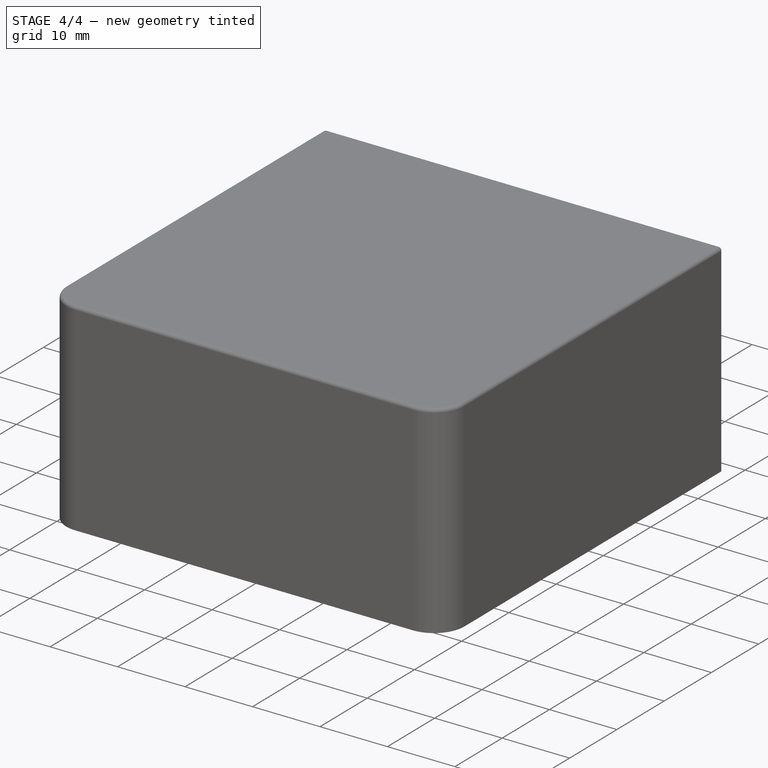
[diagram: stage 4 of 4 — iso view after this stage's code; geometry added in this stage tinted green]
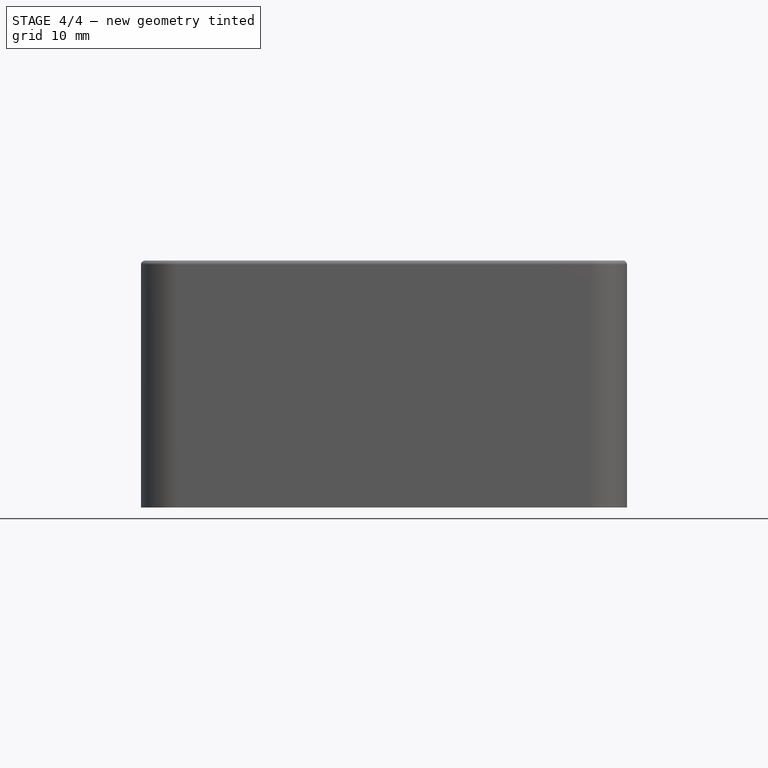
[diagram: stage 4 of 4 — front view after this stage's code; geometry added in this stage tinted green]
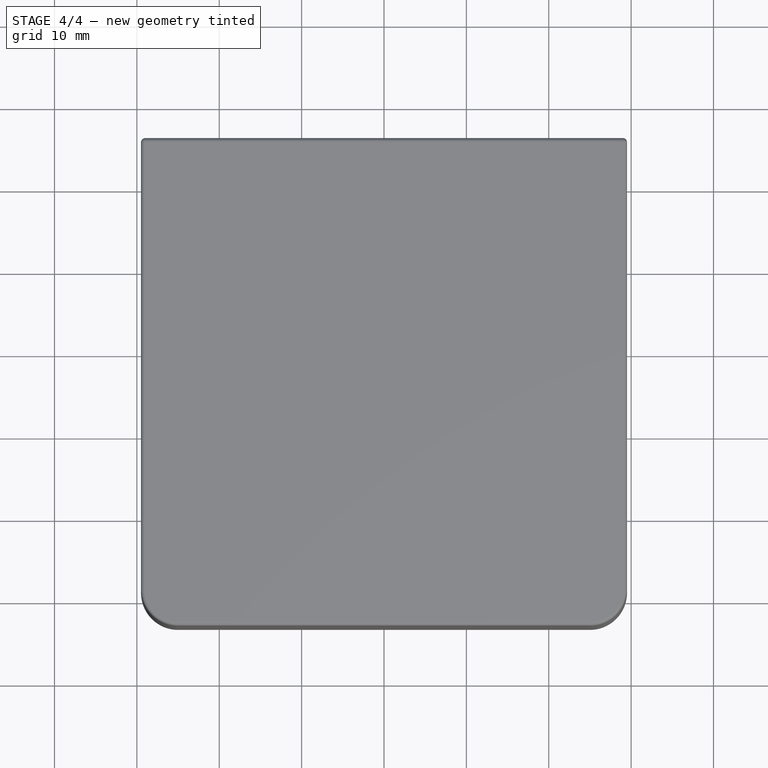
[diagram: stage 4 of 4 — top view after this stage's code; geometry added in this stage tinted green]
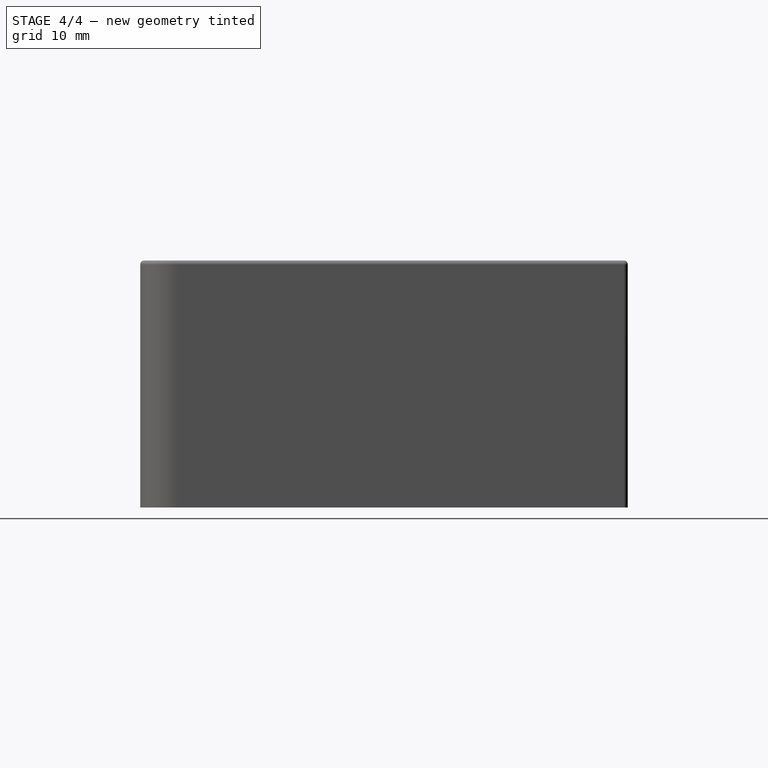
[diagram: stage 4 of 4 — right view after this stage's code; geometry added in this stage tinted green]
FEATURE [PartDesign::Pad] Pad003
  BaseFeature = -> Pocket006
  Direction = (0,0,1)
  Length = 4
  Length2 = 10
  Profile = -> Sketch010
  ReferenceAxis = -> Sketch010 [N_Axis]
  Refine = true
  Type = 0
  expr: Length = <<Parameters>>.M3Length
FEATURE [PartDesign::Body] Body  label="Base"
  Group = -> [Sketch,Pad,Sketch001,Pocket,Sketch002,Pocket001,Sketch003,Pocket002,Sketch011,Pocket007]
  Origin = -> Origin001
  Tip = -> Pocket007
FEATURE [Sketcher::SketchObject] Sketch012
  FullyConstrained = true
  MapMode = 5
  Placement = pos=(0,-24,0) rot=(0,0.707107,0.707107;3.14159rad)
  Support = -> [Pad003]
  sketch-geometry (4):
    g0: LineSegment StartX=-15 StartY=0 StartZ=0 EndX=15 EndY=0 EndZ=0
    g1: LineSegment StartX=15 StartY=0 StartZ=0 EndX=15 EndY=12 EndZ=0
    g2: LineSegment StartX=15 StartY=12 StartZ=0 EndX=-15 EndY=12 EndZ=0
    g3: LineSegment StartX=-15 StartY=12 StartZ=0 EndX=-15 EndY=0 EndZ=0
  constraints (11):
    c: Coincident(g0,g1)
    c: Coincident(g1,g2)
    c: Coincident(g2,g3)
    c: Coincident(g3,g0)
    c: Horizontal(g0)
    c: Vertical(g1)
    c: Symmetric(g2,g1,g-2)
    c: Vertical(g3)
    c: Horizontal(g0,g-1)
    c: DistanceX(g2,g1) = 30
    c: DistanceY(g-1,g2) = 12
FEATURE [PartDesign::Pocket] Pocket008
  BaseFeature = -> Pad003
  Direction = (0,-1,2e-16)
  Length = 5
  Length2 = 5
  Profile = -> Sketch012
  ReferenceAxis = -> Sketch012 [N_Axis]
  Refine = true
  Type = 2
FEATURE [PartDesign::Fillet] Fillet
  Base = -> Pocket008 [Edge129,Edge127,Edge125,Edge145,Edge133,Edge131,Edge124,Edge132]
  BaseFeature = -> Pocket008
  Radius = 0.5
  Refine = true
  SupportTransform = false
  UseAllEdges = false
FEATURE [PartDesign::Body] Body001  label="Case"
  Group = -> [Sketch005,Pad001,Sketch006,Pocket004,Sketch007,Pad002,Sketch008,Pocket005,Sketch009,Pocket006,Binder001,Sketch010,Binder,Pad003,Sketch012,Pocket008,Fillet]
  Origin = -> Origin002
  Tip = -> Fillet
FEATURE [App::Part] Part
  Group = -> [Body,Body001]
  Origin = -> Origin
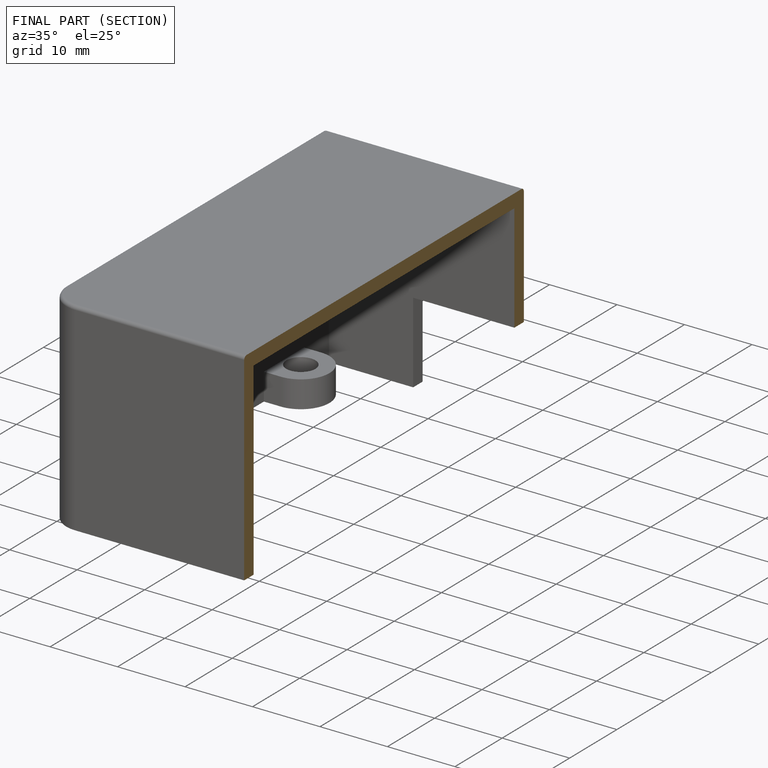
[diagram: finished part — half-section view (interior)]
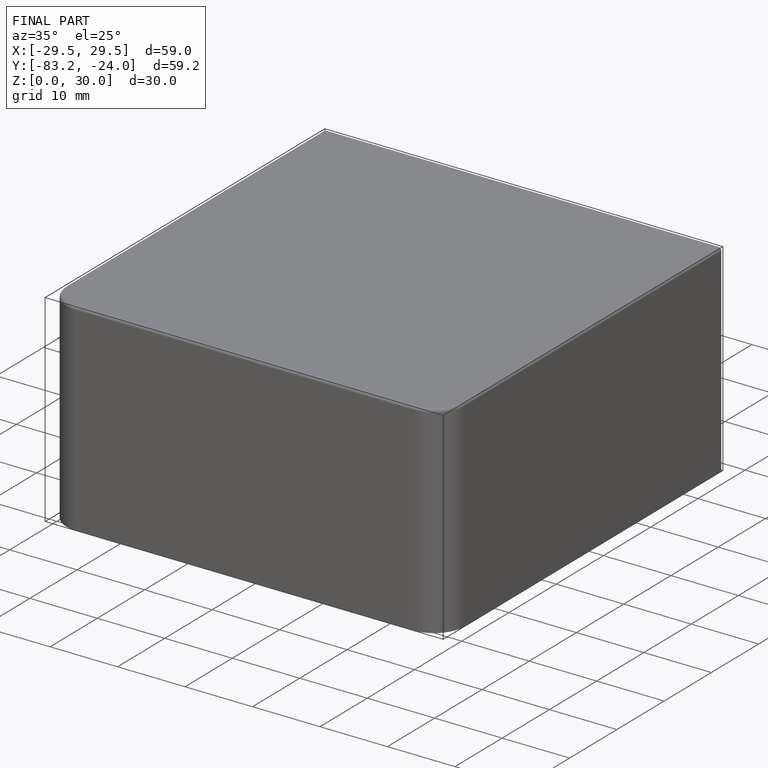
[diagram: finished part — iso view with bounding-box wireframe]
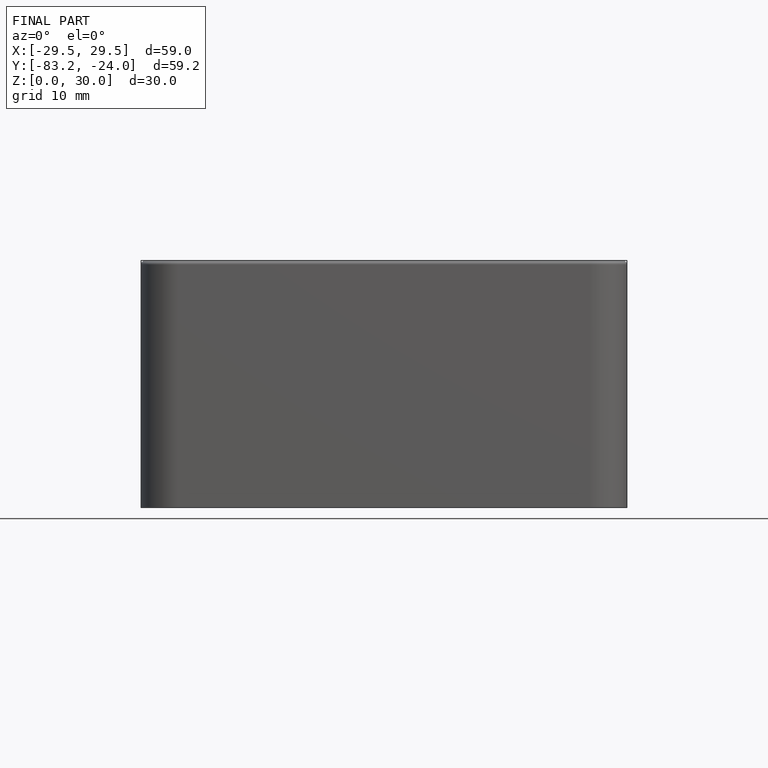
[diagram: finished part — front view with bounding-box wireframe]
